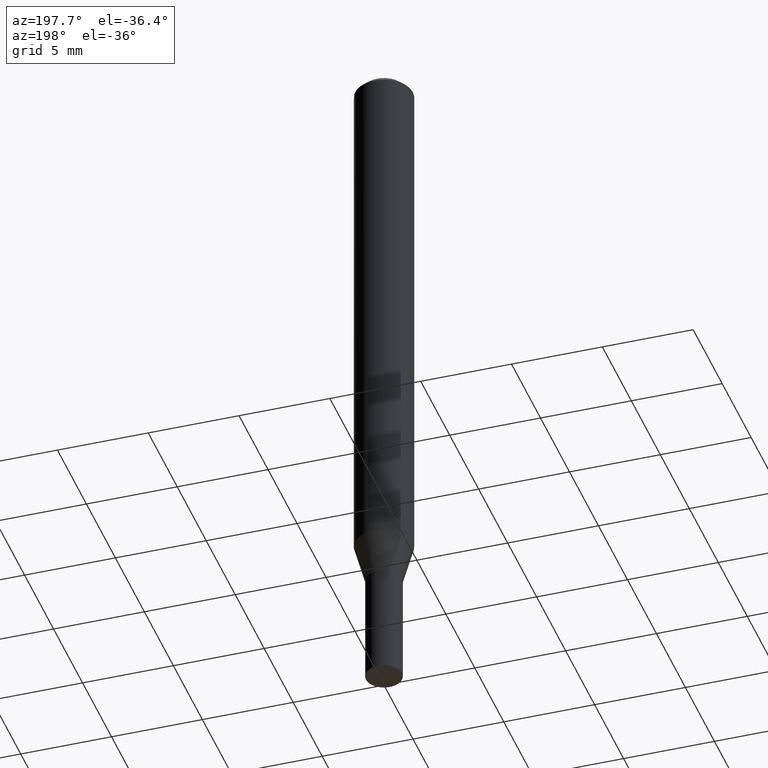
[diagram: clean part render]
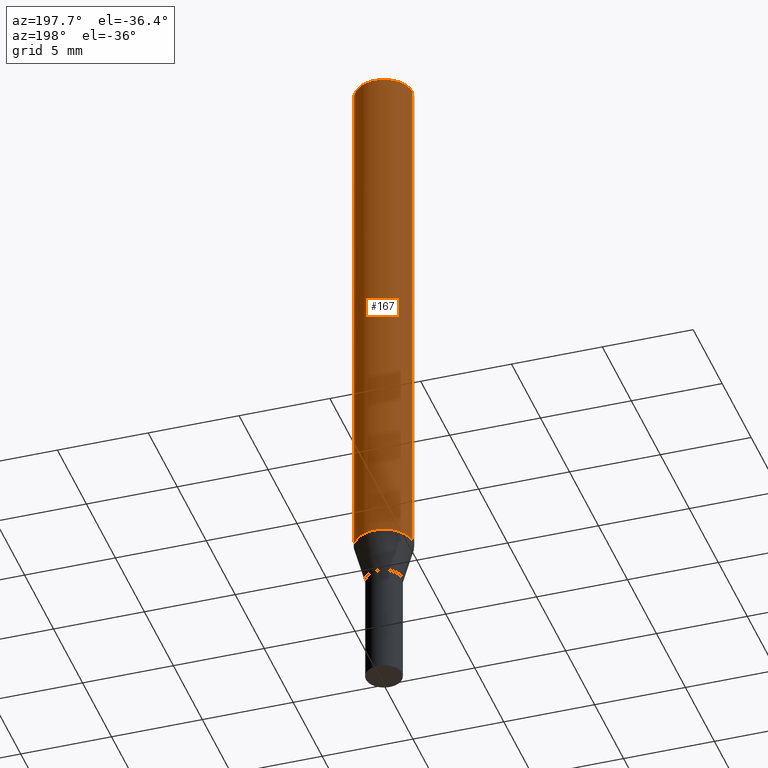
[diagram: same view with one face highlighted and labeled with its STEP entity id]
A machine part, auxiliary view. The second image highlights one B-rep face of the part: STEP entity #167.
In plain terms, the highlighted cylindrical surface (edge-blend (fillet) strip) has radius 1.5875 mm, axis along (-0, 0, 1).
Its self-contained STEP definition (entity closure, byte-faithful):
#3 = CARTESIAN_POINT ( 'NONE',  ( -0.06250000000000000000, -3.634997286606259442E-15, -1.168296806022131262 ) ) ;
#14 = ORIENTED_EDGE ( 'NONE', *, *, #257, .T. ) ;
#23 = CARTESIAN_POINT ( 'NONE',  ( -0.06250000000000000000, 4.440892098500626162E-16, -3.074334431409316114E-30 ) ) ;
#24 = CARTESIAN_POINT ( 'NONE',  ( -0.06250000000000000000, -1.621640148419421952E-15, -0.01499999999999999944 ) ) ;
#49 = ORIENTED_EDGE ( 'NONE', *, *, #428, .T. ) ;
#78 = EDGE_CURVE ( 'NONE', #234, #345, #138, .T. ) ;
#101 = CARTESIAN_POINT ( 'NONE',  ( 0.06250000000000000000, -4.515521663811713727E-15, -1.168296806022131262 ) ) ;
#102 = DIRECTION ( 'NONE',  ( -2.445468806185136597E-29, 3.491481338843145583E-15, 1.000000000000000000 ) ) ;
#131 = AXIS2_PLACEMENT_3D ( 'NONE', #366, #422, #329 ) ;
#136 = LINE ( 'NONE', #23, #189 ) ;
#138 = LINE ( 'NONE', #184, #312 ) ;
#139 = CIRCLE ( 'NONE', #152, 0.06250000000000000000 ) ;
#152 = AXIS2_PLACEMENT_3D ( 'NONE', #392, #217, #363 ) ;
#167 = ADVANCED_FACE ( 'NONE', ( #288 ), #432, .T. ) ;
#168 = ORIENTED_EDGE ( 'NONE', *, *, #78, .F. ) ;
#184 = CARTESIAN_POINT ( 'NONE',  ( 0.06250000000000000000, -4.364351673553916694E-16, 3.047610484872459871E-30 ) ) ;
#189 = VECTOR ( 'NONE', #320, 39.37007874015748143 ) ;
#193 = CARTESIAN_POINT ( 'NONE',  ( 0.06250000000000000000, -4.888073874380388472E-16, -0.01499999999999999944 ) ) ;
#217 = DIRECTION ( 'NONE',  ( -2.445468806185136597E-29, 3.491481338843145583E-15, 1.000000000000000000 ) ) ;
#234 = VERTEX_POINT ( 'NONE', #101 ) ;
#251 = AXIS2_PLACEMENT_3D ( 'NONE', #255, #102, #330 ) ;
#255 = CARTESIAN_POINT ( 'NONE',  ( 0.000000000000000000, 0.000000000000000000, 0.000000000000000000 ) ) ;
#257 = EDGE_CURVE ( 'NONE', #234, #351, #285, .T. ) ;
#279 = EDGE_LOOP ( 'NONE', ( #14, #49, #437, #168 ) ) ;
#285 = CIRCLE ( 'NONE', #131, 0.06250000000000000000 ) ;
#288 = FACE_OUTER_BOUND ( 'NONE', #279, .T. ) ;
#312 = VECTOR ( 'NONE', #362, 39.37007874015748143 ) ;
#320 = DIRECTION ( 'NONE',  ( -2.445468806185136877E-29, 3.491481338843145188E-15, 1.000000000000000000 ) ) ;
#327 = VERTEX_POINT ( 'NONE', #24 ) ;
#328 = EDGE_CURVE ( 'NONE', #345, #327, #139, .T. ) ;
#329 = DIRECTION ( 'NONE',  ( 1.000000000000000000, -6.982962677686270655E-15, 0.000000000000000000 ) ) ;
#330 = DIRECTION ( 'NONE',  ( 1.000000000000000000, -6.982962677686266711E-15, 4.876176775795935793E-29 ) ) ;
#345 = VERTEX_POINT ( 'NONE', #193 ) ;
#351 = VERTEX_POINT ( 'NONE', #3 ) ;
#362 = DIRECTION ( 'NONE',  ( -2.445468806185136877E-29, 3.491481338843145188E-15, 1.000000000000000000 ) ) ;
#363 = DIRECTION ( 'NONE',  ( 1.000000000000000000, -6.982962677686266711E-15, 0.000000000000000000 ) ) ;
#366 = CARTESIAN_POINT ( 'NONE',  ( 2.857033395492849775E-29, -4.079086496456322058E-15, -1.168296806022131262 ) ) ;
#392 = CARTESIAN_POINT ( 'NONE',  ( 3.668203209277705088E-31, -5.237222008264718399E-17, -0.01499999999999999944 ) ) ;
#422 = DIRECTION ( 'NONE',  ( -2.445468806185136597E-29, 3.491481338843145583E-15, 1.000000000000000000 ) ) ;
#428 = EDGE_CURVE ( 'NONE', #351, #327, #136, .T. ) ;
#432 = CYLINDRICAL_SURFACE ( 'NONE', #251, 0.06250000000000000000 ) ;
#437 = ORIENTED_EDGE ( 'NONE', *, *, #328, .F. ) ;